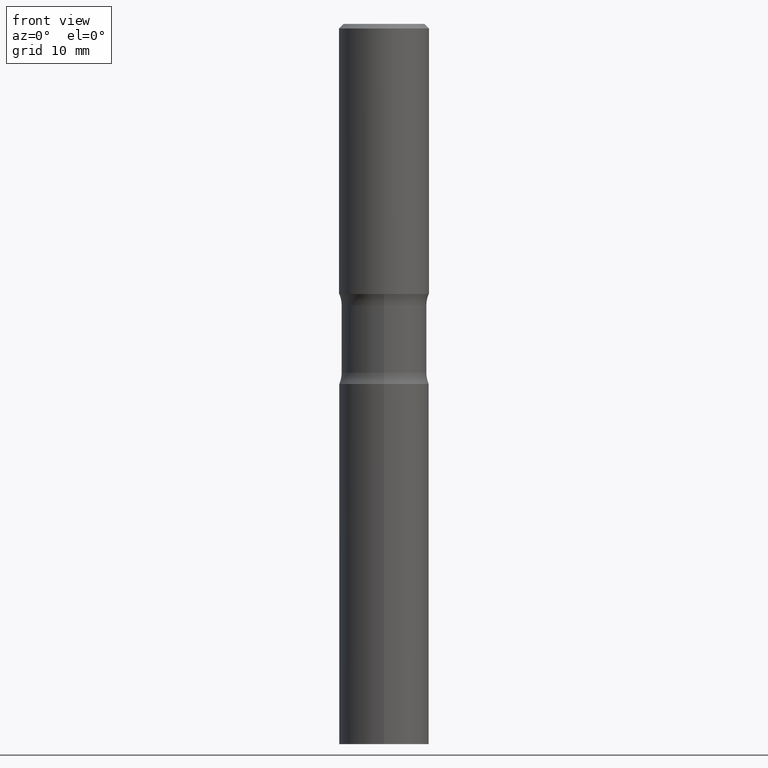
[diagram: clean part render]
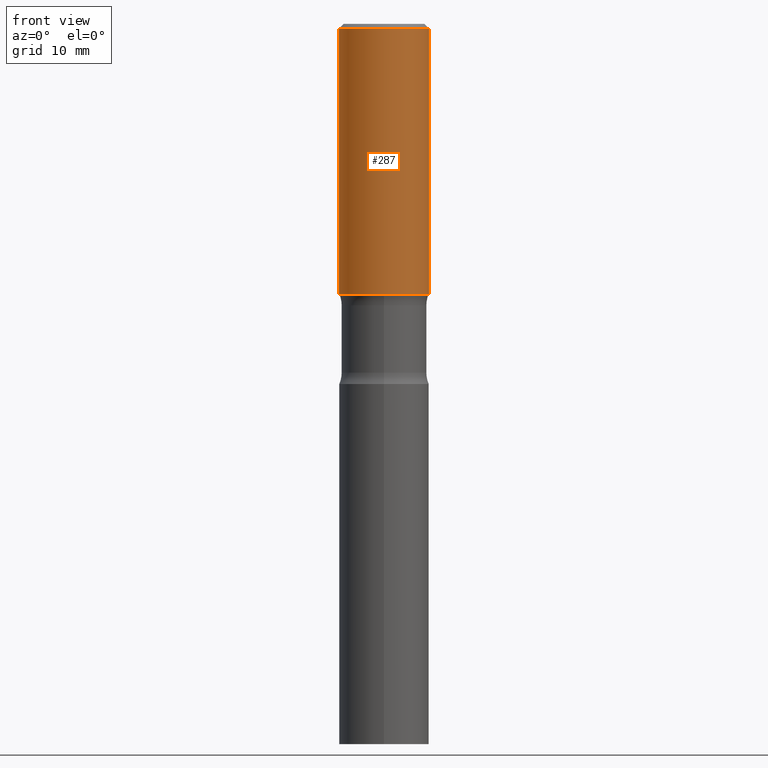
[diagram: same view with one face highlighted and labeled with its STEP entity id]
A machine part, front view. The second image highlights one B-rep face of the part: STEP entity #287.
In plain terms, the highlighted cylindrical surface (partial cylindrical patch) has radius 5 mm, axis along (-0, 0, 1).
Its self-contained STEP definition (entity closure, byte-faithful):
#1 = LINE ( 'NONE', #200, #377 ) ;
#24 = EDGE_CURVE ( 'NONE', #448, #297, #375, .T. ) ;
#41 = CYLINDRICAL_SURFACE ( 'NONE', #168, 0.1968499999999999694 ) ;
#48 = ORIENTED_EDGE ( 'NONE', *, *, #24, .F. ) ;
#62 = EDGE_LOOP ( 'NONE', ( #149, #452, #337, #48 ) ) ;
#74 = EDGE_CURVE ( 'NONE', #368, #336, #458, .T. ) ;
#86 = DIRECTION ( 'NONE',  ( 1.000000000000000000, -6.982962677686266711E-15, 4.876176775795935793E-29 ) ) ;
#127 = DIRECTION ( 'NONE',  ( -2.445468806185136877E-29, 3.491481338843145188E-15, 1.000000000000000000 ) ) ;
#134 = AXIS2_PLACEMENT_3D ( 'NONE', #296, #139, #445 ) ;
#135 = CARTESIAN_POINT ( 'NONE',  ( -0.1968499999999999417, 1.304766576325678113E-15, -0.02000000000000003511 ) ) ;
#139 = DIRECTION ( 'NONE',  ( -2.445468806185136597E-29, 3.491481338843145583E-15, 1.000000000000000000 ) ) ;
#149 = ORIENTED_EDGE ( 'NONE', *, *, #243, .F. ) ;
#168 = AXIS2_PLACEMENT_3D ( 'NONE', #169, #204, #86 ) ;
#169 = CARTESIAN_POINT ( 'NONE',  ( 0.000000000000000000, 0.000000000000000000, 0.000000000000000000 ) ) ;
#200 = CARTESIAN_POINT ( 'NONE',  ( 0.1968499999999999694, -1.374596203102541411E-15, 9.598753983154298056E-30 ) ) ;
#204 = DIRECTION ( 'NONE',  ( -2.445468806185136597E-29, 3.491481338843145583E-15, 1.000000000000000000 ) ) ;
#234 = AXIS2_PLACEMENT_3D ( 'NONE', #454, #413, #261 ) ;
#243 = EDGE_CURVE ( 'NONE', #368, #448, #437, .T. ) ;
#261 = DIRECTION ( 'NONE',  ( 1.000000000000000000, -6.982962677686269077E-15, 0.000000000000000000 ) ) ;
#273 = EDGE_CURVE ( 'NONE', #336, #297, #1, .T. ) ;
#277 = FACE_OUTER_BOUND ( 'NONE', #62, .T. ) ;
#282 = CARTESIAN_POINT ( 'NONE',  ( -0.1968499999999999694, 1.398703375343756999E-15, -9.682923725166782276E-30 ) ) ;
#285 = VECTOR ( 'NONE', #127, 39.37007874015748143 ) ;
#287 = ADVANCED_FACE ( 'NONE', ( #277 ), #41, .T. ) ;
#296 = CARTESIAN_POINT ( 'NONE',  ( 4.890937612370281041E-31, -6.982962677686302702E-17, -0.02000000000000003511 ) ) ;
#297 = VERTEX_POINT ( 'NONE', #352 ) ;
#320 = CARTESIAN_POINT ( 'NONE',  ( 0.1968500000000000527, -5.498384812410181421E-15, -1.181099999999999817 ) ) ;
#336 = VERTEX_POINT ( 'NONE', #320 ) ;
#337 = ORIENTED_EDGE ( 'NONE', *, *, #273, .T. ) ;
#352 = CARTESIAN_POINT ( 'NONE',  ( 0.1968499999999999417, -1.420318657638188727E-15, -0.02000000000000003511 ) ) ;
#368 = VERTEX_POINT ( 'NONE', #470 ) ;
#375 = CIRCLE ( 'NONE', #134, 0.1968499999999999417 ) ;
#377 = VECTOR ( 'NONE', #482, 39.37007874015748143 ) ;
#413 = DIRECTION ( 'NONE',  ( -2.445468806185136597E-29, 3.491481338843145583E-15, 1.000000000000000000 ) ) ;
#437 = LINE ( 'NONE', #282, #285 ) ;
#445 = DIRECTION ( 'NONE',  ( 1.000000000000000000, -6.982962677686266711E-15, 0.000000000000000000 ) ) ;
#448 = VERTEX_POINT ( 'NONE', #135 ) ;
#452 = ORIENTED_EDGE ( 'NONE', *, *, #74, .T. ) ;
#454 = CARTESIAN_POINT ( 'NONE',  ( 2.888343206985264877E-29, -4.123788609307639024E-15, -1.181099999999999817 ) ) ;
#458 = CIRCLE ( 'NONE', #234, 0.1968500000000000527 ) ;
#470 = CARTESIAN_POINT ( 'NONE',  ( -0.1968500000000000805, -6.981057426984923875E-16, -1.181099999999999817 ) ) ;
#482 = DIRECTION ( 'NONE',  ( -2.445468806185136877E-29, 3.491481338843145188E-15, 1.000000000000000000 ) ) ;